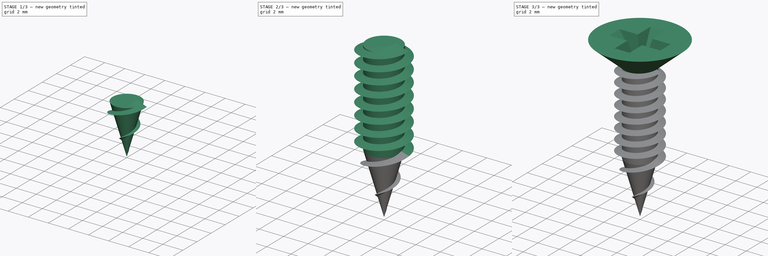
[diagram: build sequence overview — one tinted view per stage of 3, left to right]
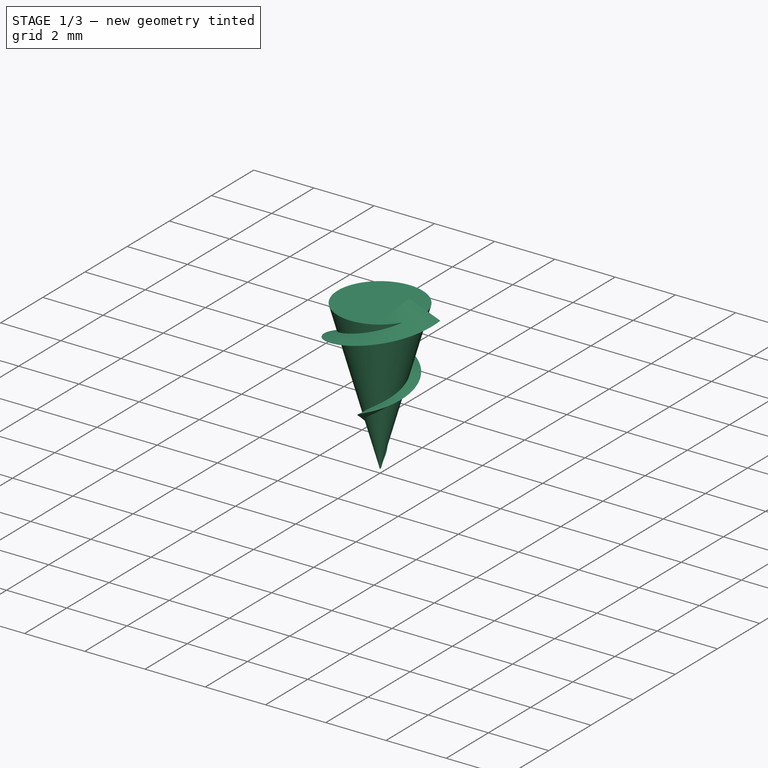
[diagram: stage 1 of 3 — iso view after this stage's code; geometry added in this stage tinted green]
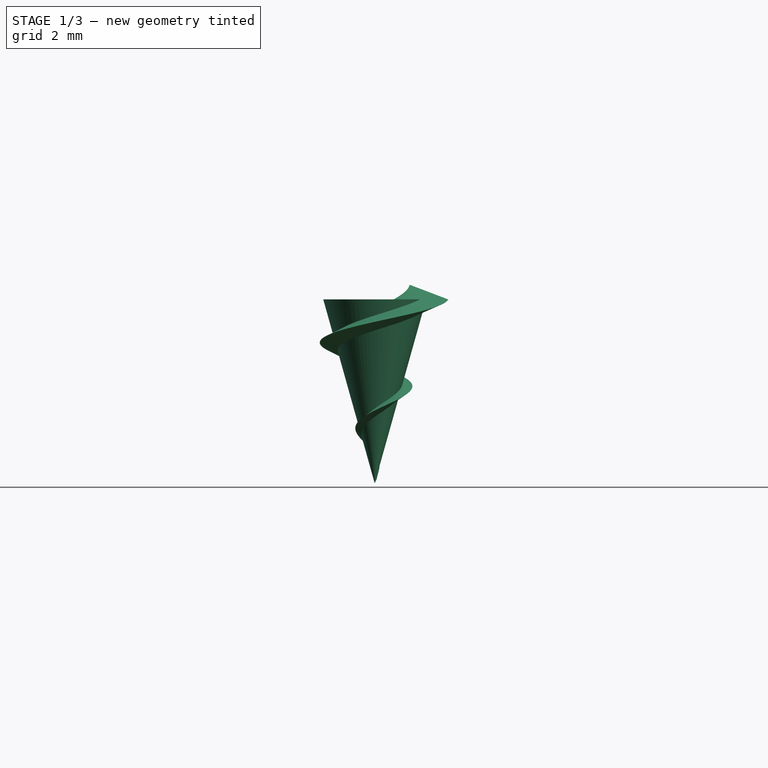
[diagram: stage 1 of 3 — front view after this stage's code; geometry added in this stage tinted green]
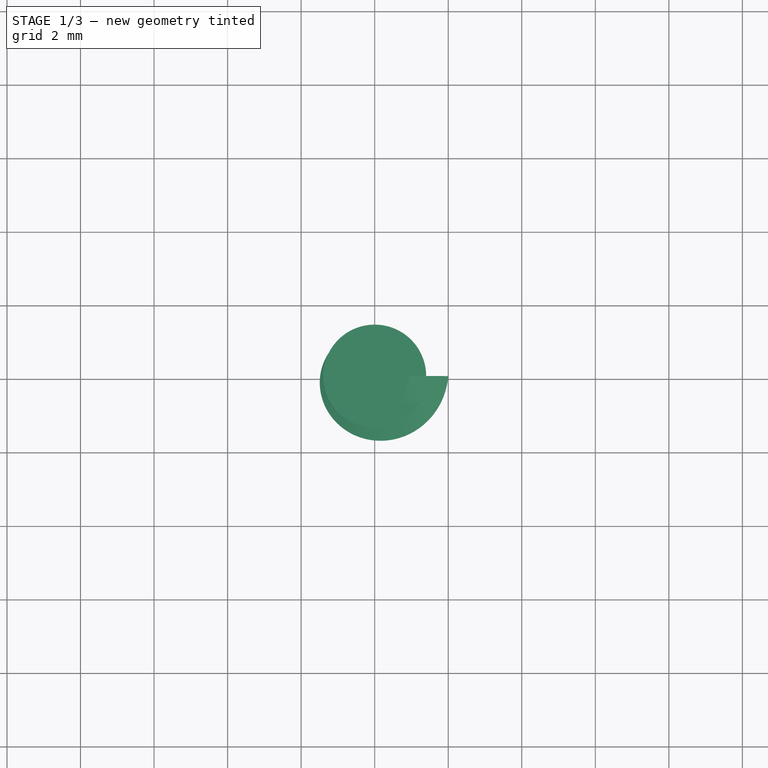
[diagram: stage 1 of 3 — top view after this stage's code; geometry added in this stage tinted green]
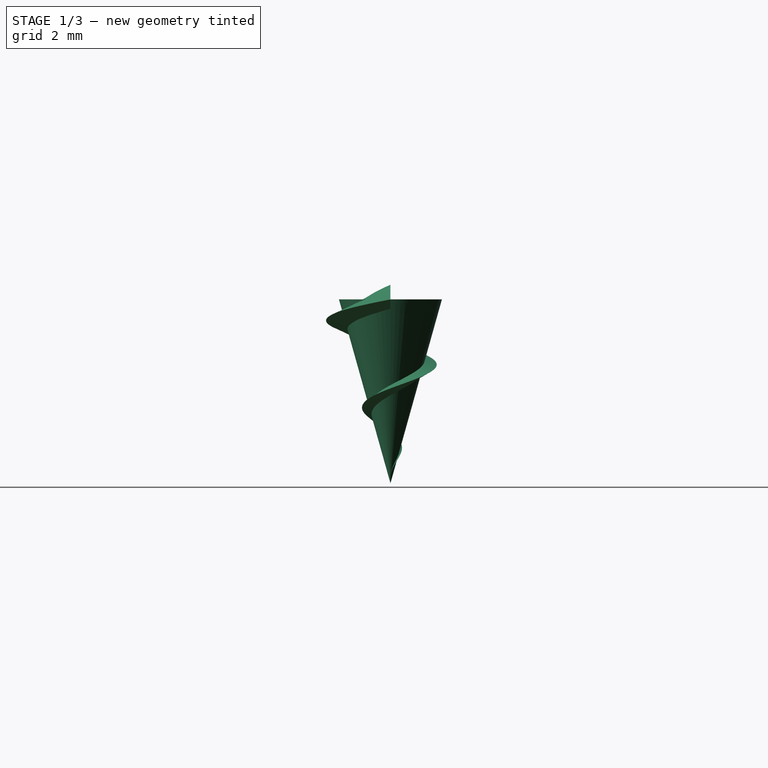
[diagram: stage 1 of 3 — right view after this stage's code; geometry added in this stage tinted green]
FCSTD DOCUMENT  (FreeCAD 0.21R33771 (Git))
Label: Fastener_WoodScrew_StatorMold
License: All rights reserved
LicenseURL: http://en.wikipedia.org/wiki/All_rights_reserved
objects: Sketcher::SketchObject×4, PartDesign::Plane×4, Part::Helix×2, PartDesign::ShapeBinder×2, PartDesign::AdditiveCone×2, PartDesign::AdditiveCylinder×1, Part::Sweep×1, PartDesign::AdditivePipe×1, PartDesign::SubtractiveLoft×1, PartDesign::Body×1, Spreadsheet::Sheet×1, App::Link×1, App::Part×1
note: 24 computed .brp shape members not serialized (recipe doc carries the construction recipe); baked Part::Feature solids carry a one-line shape summary decoded from their .brp
EXTERNAL_REF file=../Master_of_Puppets.FCStd obj=Alternator
EXTERNAL_REF file=../Master_of_Puppets.FCStd obj=Fastener

FEATURE [Part::Helix] Helix  label="TipThreadPath"
  Angle = 10.758
  AttacherType = Attacher::AttachEngine3D
  Height = 5
  LocalCoord = 0
  Pitch = 2.5
  Placement = pos=(0.01,0,0.05) rot=(0,0,1;0rad)
  Radius = 0
  SegmentLength = 0
  Style = 1
  expr: .Placement.Base.x = Spreadsheet.TipThreadPathX
  expr: .Placement.Base.z = Spreadsheet.TipThreadPathZ
  expr: Angle = Spreadsheet.TipThreadPathAngle
  expr: Height = Spreadsheet.TipHeight
  expr: Pitch = Spreadsheet.TipThreadPathPitch
FEATURE [PartDesign::ShapeBinder] ShapeBinder  label="TipThreadPathBinder"
  Placement = pos=(0.01,0,0.05) rot=(0,0,1;0rad)
  Support = -> [Helix]
  TraceSupport = true
FEATURE [Sketcher::SketchObject] Sketch  label="TipThreadProfile"
  FullyConstrained = true
  MapMode = 5
  Placement = pos=(0,0,0) rot=(1,0,0;1.5708rad)
  Support = -> [XZ_Plane]
  expr: Constraints[6] = Spreadsheet.TipThreadProfileHeight
  expr: Constraints[7] = Spreadsheet.TipThreadProfileWidth
  sketch-geometry (3):
    g0: LineSegment StartX=0 StartY=0.1 StartZ=0 EndX=0.05 EndY=0.1 EndZ=0
    g1: LineSegment StartX=0.05 StartY=0.1 StartZ=0 EndX=0 EndY=0 EndZ=0
    g2: LineSegment StartX=0 StartY=0.1 StartZ=0 EndX=0 EndY=0 EndZ=0
  constraints (8):
    c: PointOnObject(g0,g-2)
    c: Horizontal(g0)
    c: Coincident(g0,g1)
    c: Coincident(g1,g-1)
    c: Coincident(g2,g0)
    c: Coincident(g2,g1)
    c: DistanceY(g2,g2) = 0.1
    c: DistanceX(g0,g0) = 0.05
FEATURE [PartDesign::Plane] DatumPlane001  label="ShankPlane"
  Length = 60
  MapMode = 2
  Placement = pos=(0,0,12.75) rot=(0,0,1;0rad)
  ResizeMode = 0
  Width = 60
  expr: .Placement.Base.z = Spreadsheet.ShankPlaneZ
FEATURE [PartDesign::Plane] DatumPlane  label="TipPlane"
  Length = 60
  MapMode = 2
  Placement = pos=(0,0,5) rot=(0,0,1;0rad)
  ResizeMode = 0
  Width = 60
  expr: .Placement.Base.z = Spreadsheet.TipHeight
FEATURE [PartDesign::AdditiveCone] Cone  label="Tip"
  Angle = 360
  AttacherType = Attacher::AttachEngine3D
  Height = 5
  Radius1 = 0
  Radius2 = 1.4
  expr: Height = Spreadsheet.TipHeight
  expr: Radius2 = Spreadsheet.InnerRadius
FEATURE [Sketcher::SketchObject] Sketch001  label="ShankThreadProfile"
  FullyConstrained = true
  MapMode = 5
  Placement = pos=(0,0,0) rot=(1,0,0;1.5708rad)
  Support = -> [XZ_Plane]
  expr: Constraints[5] = Spreadsheet.ShankThreadThickness
  expr: Constraints[6] = Spreadsheet.ShankThreadProfileWidth
  expr: Constraints[7] = Spreadsheet.ShankThreadProfileVerticalDistanceFromCenter
  expr: Constraints[8] = Spreadsheet.Radius
  sketch-geometry (3):
    g0: LineSegment StartX=0.95 StartY=4.6 StartZ=0 EndX=0.95 EndY=5.4 EndZ=0
    g1: LineSegment StartX=0.95 StartY=5.4 StartZ=0 EndX=2 EndY=5 EndZ=0
    g2: LineSegment StartX=2 StartY=5 StartZ=0 EndX=0.95 EndY=4.6 EndZ=0
  constraints (9):
    c: Vertical(g0)
    c: Coincident(g0,g1)
    c: Coincident(g1,g2)
    c: Coincident(g2,g0)
    c: Equal(g2,g1)
    c: DistanceY(g0,g0) = 0.8
    c: DistanceX(g0,g1) = 1.05
    c: DistanceY(g-1,g1) = 5
    c: DistanceX(g-1,g1) = 2
FEATURE [Part::Sweep] Sweep  label="TipThread"
  Frenet = true
  Sections = -> [Sketch,Sketch001]
  Solid = true
  Spine = -> Helix
  Transition = 1
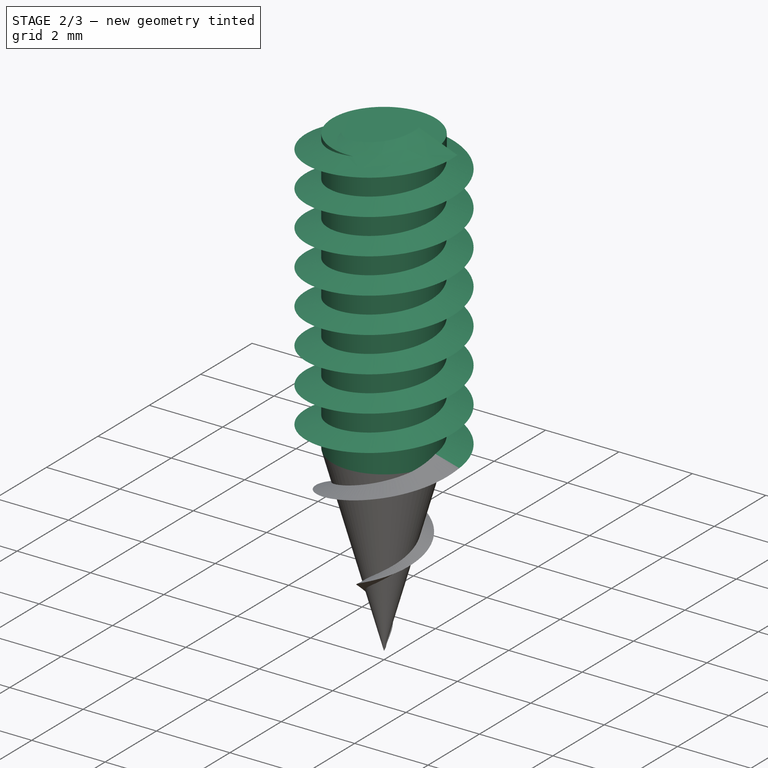
[diagram: stage 2 of 3 — iso view after this stage's code; geometry added in this stage tinted green]
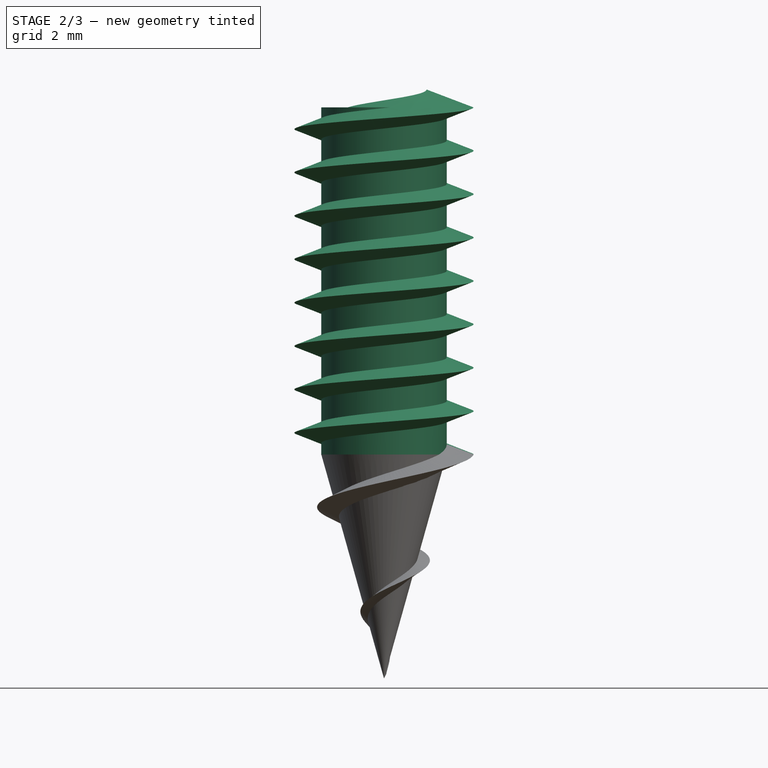
[diagram: stage 2 of 3 — front view after this stage's code; geometry added in this stage tinted green]
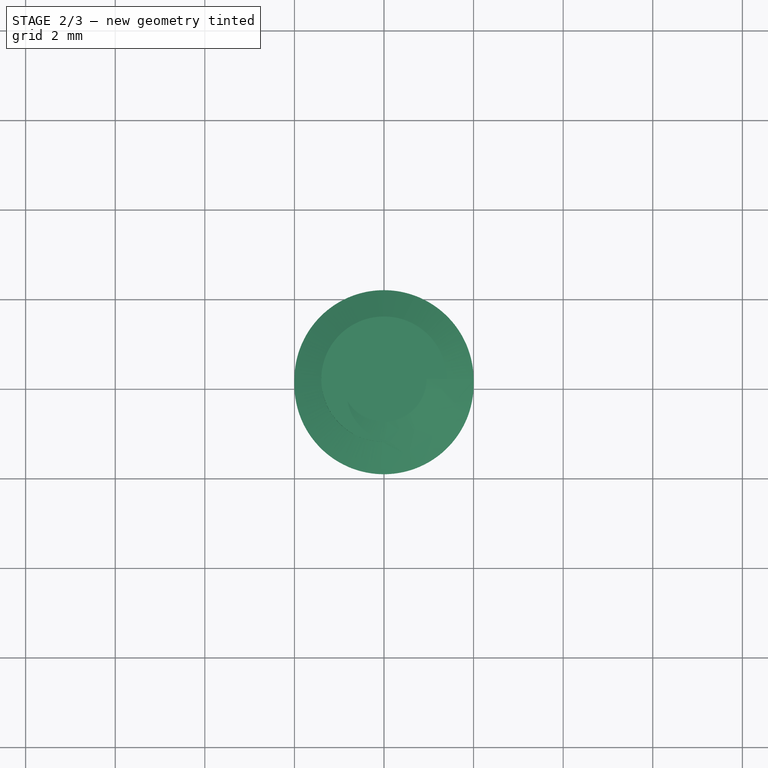
[diagram: stage 2 of 3 — top view after this stage's code; geometry added in this stage tinted green]
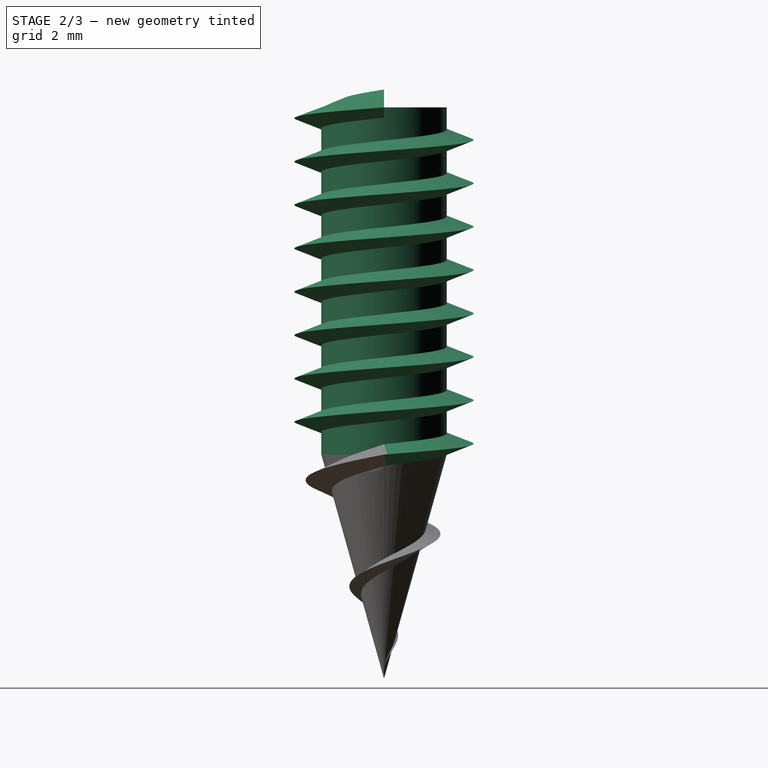
[diagram: stage 2 of 3 — right view after this stage's code; geometry added in this stage tinted green]
FEATURE [PartDesign::AdditiveCylinder] Cylinder  label="Shank"
  Angle = 360
  AttacherType = Attacher::AttachEngine3D
  BaseFeature = -> Cone
  FirstAngle = 0
  Height = 7.75
  MapMode = 5
  Placement = pos=(0,0,5) rot=(0,0,1;0rad)
  Radius = 1.4
  SecondAngle = 0
  Support = -> [DatumPlane]
  expr: Height = Spreadsheet.ShankHeight
  expr: Radius = Spreadsheet.InnerRadius
FEATURE [Part::Helix] Helix001  label="ShankThreadPath"
  Angle = 0
  AttacherType = Attacher::AttachEngine3D
  Height = 7.75
  LocalCoord = 0
  Pitch = 0.96875
  Placement = pos=(0,0,5) rot=(0,0,1;0rad)
  Radius = 2
  SegmentLength = 0
  Style = 1
  expr: .Placement.Base.z = Spreadsheet.TipHeight
  expr: Height = Spreadsheet.ShankHeight
  expr: Pitch = Spreadsheet.ShankThreadPathPitch
  expr: Radius = Spreadsheet.Radius
FEATURE [PartDesign::ShapeBinder] ShapeBinder001  label="ShankThreadPathBinder"
  Placement = pos=(0,0,5) rot=(0,0,1;0rad)
  Support = -> [Helix001]
  TraceSupport = false
FEATURE [PartDesign::AdditivePipe] AdditivePipe  label="ShankThread"
  AuxilleryCurvelinear = true
  AuxillerySpineTangent = false
  BaseFeature = -> Cylinder
  Binormal = (0,0,0)
  Mode = 2
  Placement = pos=(0,0,5) rot=(0,0,1;0rad)
  Profile = -> Sketch001
  Spine = -> ShapeBinder001
  SpineTangent = false
  Transformation = 1
  Transition = 0
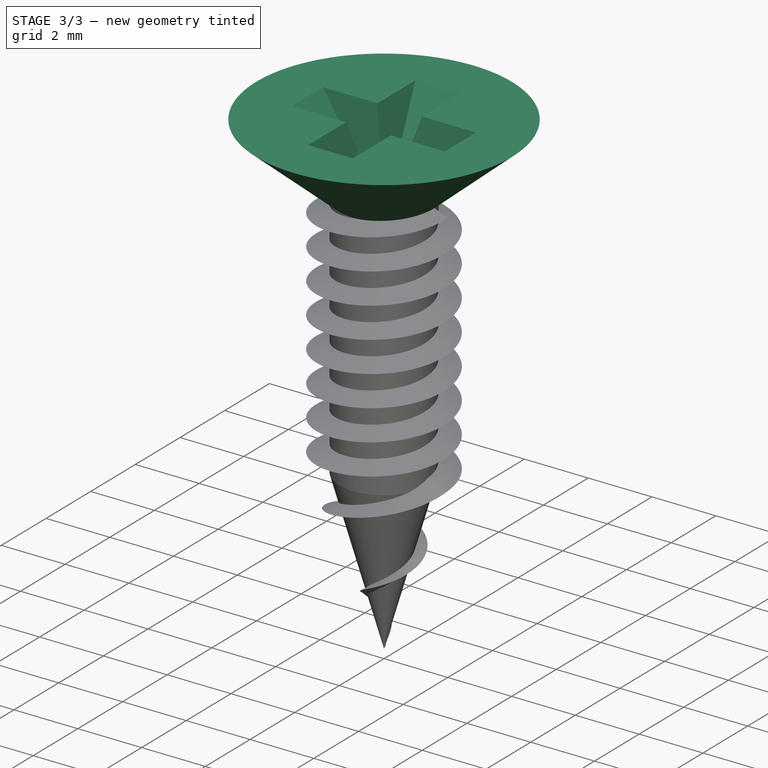
[diagram: stage 3 of 3 — iso view after this stage's code; geometry added in this stage tinted green]
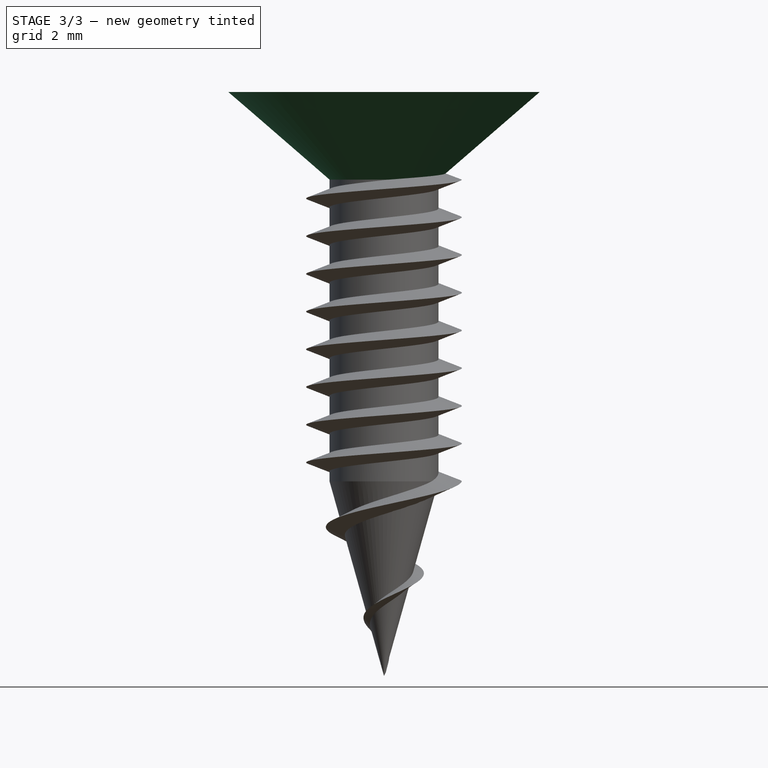
[diagram: stage 3 of 3 — front view after this stage's code; geometry added in this stage tinted green]
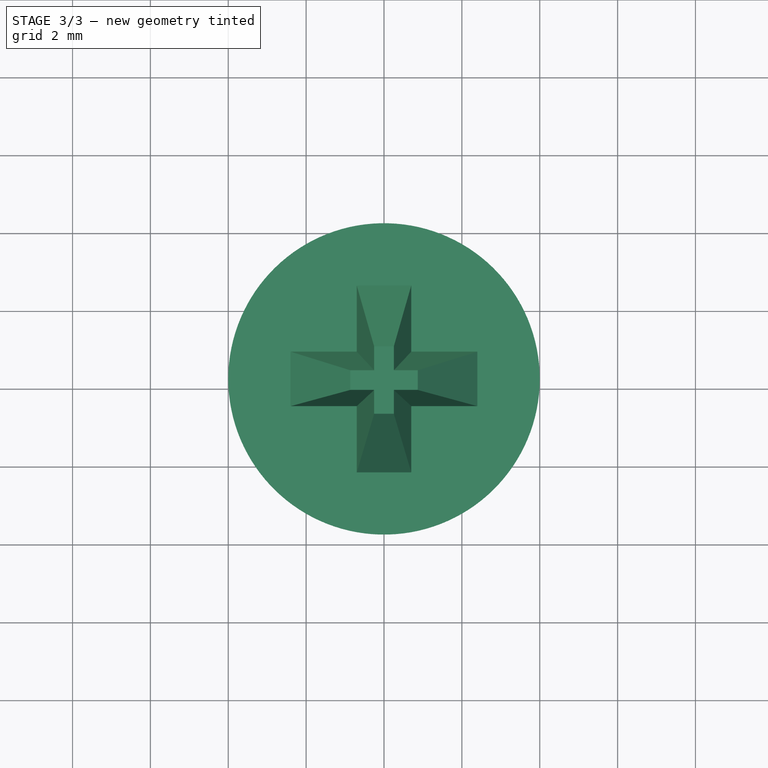
[diagram: stage 3 of 3 — top view after this stage's code; geometry added in this stage tinted green]
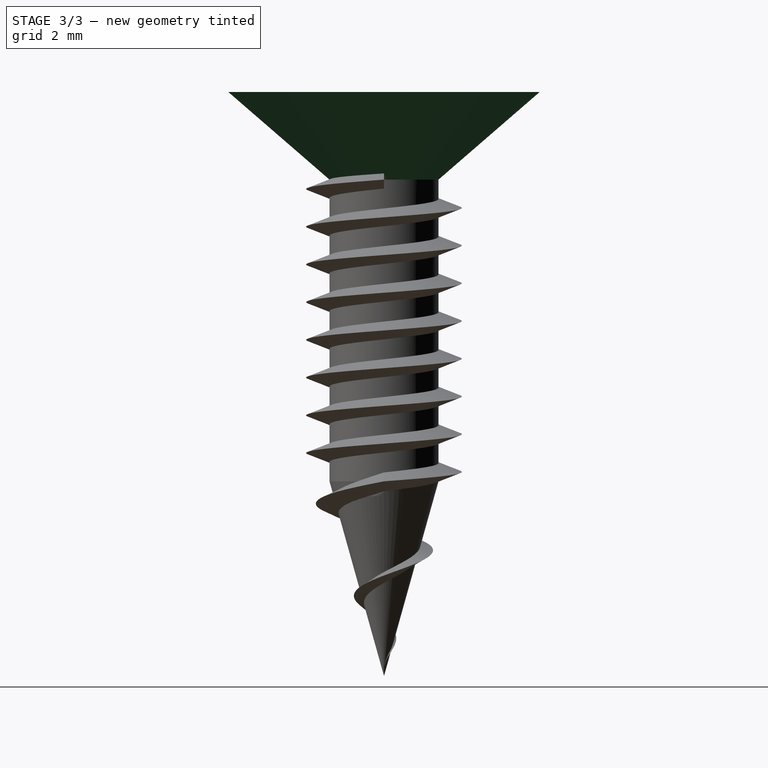
[diagram: stage 3 of 3 — right view after this stage's code; geometry added in this stage tinted green]
FEATURE [PartDesign::AdditiveCone] Cone001  label="Head"
  Angle = 360
  AttacherType = Attacher::AttachEngine3D
  BaseFeature = -> AdditivePipe
  Height = 2.25
  MapMode = 5
  Placement = pos=(0,0,12.75) rot=(0,0,1;0rad)
  Radius1 = 1.4
  Radius2 = 4
  Support = -> [DatumPlane001]
  expr: Height = Spreadsheet.HeadHeight
  expr: Radius1 = Spreadsheet.InnerRadius
  expr: Radius2 = Spreadsheet.HeadRadius
FEATURE [PartDesign::Plane] DatumPlane002  label="HeadPlane"
  Length = 60
  MapMode = 2
  Placement = pos=(0,0,15) rot=(0,0,1;0rad)
  ResizeMode = 0
  Width = 60
  expr: .Placement.Base.z = Spreadsheet.HeadPlaneZ
FEATURE [Sketcher::SketchObject] Sketch002  label="CrossSketch"
  FullyConstrained = true
  MapMode = 5
  Placement = pos=(0,0,15) rot=(0,0,1;0rad)
  Support = -> [DatumPlane002]
  expr: Constraints[32] = Spreadsheet.CrossWidth
  expr: Constraints[33] = Spreadsheet.CrossHeight
  sketch-geometry (12):
    g0: LineSegment StartX=-0.7 StartY=2.4 StartZ=0 EndX=0.7 EndY=2.4 EndZ=0
    g1: LineSegment StartX=0.7 StartY=2.4 StartZ=0 EndX=0.7 EndY=0.700003 EndZ=0
    g2: LineSegment StartX=0.7 StartY=0.700003 StartZ=0 EndX=2.4 EndY=0.7 EndZ=0
    g3: LineSegment StartX=2.4 StartY=0.7 StartZ=0 EndX=2.4 EndY=-0.7 EndZ=0
    g4: LineSegment StartX=2.4 StartY=-0.7 StartZ=0 EndX=0.7 EndY=-0.7 EndZ=0
    g5: LineSegment StartX=0.7 StartY=-0.7 StartZ=0 EndX=0.7 EndY=-2.4 EndZ=0
    g6: LineSegment StartX=0.7 StartY=-2.4 StartZ=0 EndX=-0.7 EndY=-2.4 EndZ=0
    g7: LineSegment StartX=-0.7 StartY=-2.4 StartZ=0 EndX=-0.7 EndY=-0.7 EndZ=0
    g8: LineSegment StartX=-0.7 StartY=-0.7 StartZ=0 EndX=-2.4 EndY=-0.7 EndZ=0
    g9: LineSegment StartX=-2.4 StartY=-0.7 StartZ=0 EndX=-2.4 EndY=0.7 EndZ=0
    g10: LineSegment StartX=-2.4 StartY=0.7 StartZ=0 EndX=-0.7 EndY=0.7 EndZ=0
    g11: LineSegment StartX=-0.7 StartY=0.7 StartZ=0 EndX=-0.7 EndY=2.4 EndZ=0
  constraints (34):
    c: Horizontal(g0)
    c: Coincident(g0,g1)
    c: Vertical(g1)
    c: Coincident(g1,g2)
    c: Coincident(g2,g3)
    c: Vertical(g3)
    c: Coincident(g3,g4)
    c: Coincident(g4,g5)
    c: Vertical(g5)
    c: Coincident(g5,g6)
    c: Horizontal(g6)
    c: Coincident(g6,g7)
    c: Vertical(g7)
    c: Coincident(g7,g8)
    c: Horizontal(g8)
    c: Coincident(g8,g9)
    c: Vertical(g9)
    c: Coincident(g9,g10)
    c: Horizontal(g10)
    c: Coincident(g10,g11)
    c: Coincident(g11,g0)
    c: Vertical(g11)
    c: Horizontal(g4)
    c: Equal(g8,g7)
    c: Equal(g7,g10)
    c: Equal(g10,g11)
    c: Equal(g11,g2)
    c: Equal(g2,g4)
    c: Equal(g0,g9)
    c: Equal(g9,g3)
    c: Symmetric(g0,g5,g-1)
    c: Symmetric(g3,g8,g-2)
    c: DistanceX(g0,g0) = 1.4
    c: DistanceY(g5,g0) = 4.8
FEATURE [PartDesign::Plane] DatumPlane003  label="CrossRecessPlane"
  Length = 60
  MapMode = 2
  Placement = pos=(0,0,13.25) rot=(0,0,1;0rad)
  ResizeMode = 0
  Width = 60
  expr: .Placement.Base.z = Spreadsheet.CrossRecessPlaneZ
FEATURE [Sketcher::SketchObject] Sketch004  label="CrossRecessSketch"
  FullyConstrained = true
  MapMode = 5
  Placement = pos=(0,0,13.25) rot=(0,0,1;0rad)
  Support = -> [DatumPlane003]
  expr: Constraints[32] = Spreadsheet.CrossRecessHeight
  expr: Constraints[33] = Spreadsheet.CrossRecessWidth
  sketch-geometry (12):
    g0: LineSegment StartX=-0.252577 StartY=0.865979 StartZ=0 EndX=0.252577 EndY=0.865979 EndZ=0
    g1: LineSegment StartX=0.252577 StartY=0.865979 StartZ=0 EndX=0.252577 EndY=0.252577 EndZ=0
    g2: LineSegment StartX=0.252577 StartY=0.252577 StartZ=0 EndX=0.865979 EndY=0.252577 EndZ=0
    g3: LineSegment StartX=0.865979 StartY=0.252577 StartZ=0 EndX=0.865979 EndY=-0.252577 EndZ=0
    g4: LineSegment StartX=0.865979 StartY=-0.252577 StartZ=0 EndX=0.252577 EndY=-0.252577 EndZ=0
    g5: LineSegment StartX=0.252577 StartY=-0.252577 StartZ=0 EndX=0.252577 EndY=-0.865979 EndZ=0
    g6: LineSegment StartX=0.252577 StartY=-0.865979 StartZ=0 EndX=-0.252577 EndY=-0.865979 EndZ=0
    g7: LineSegment StartX=-0.252577 StartY=-0.865979 StartZ=0 EndX=-0.252577 EndY=-0.252577 EndZ=0
    g8: LineSegment StartX=-0.252577 StartY=-0.252577 StartZ=0 EndX=-0.865979 EndY=-0.252577 EndZ=0
    g9: LineSegment StartX=-0.865979 StartY=-0.252577 StartZ=0 EndX=-0.865979 EndY=0.252577 EndZ=0
    g10: LineSegment StartX=-0.865979 StartY=0.252577 StartZ=0 EndX=-0.252577 EndY=0.252577 EndZ=0
    g11: LineSegment StartX=-0.252577 StartY=0.252577 StartZ=0 EndX=-0.252577 EndY=0.865979 EndZ=0
  constraints (34):
    c: Horizontal(g0)
    c: Coincident(g0,g1)
    c: Vertical(g1)
    c: Coincident(g1,g2)
    c: Coincident(g2,g3)
    c: Vertical(g3)
    c: Coincident(g3,g4)
    c: Coincident(g4,g5)
    c: Vertical(g5)
    c: Coincident(g5,g6)
    c: Horizontal(g6)
    c: Coincident(g6,g7)
    c: Vertical(g7)
    c: Coincident(g7,g8)
    c: Coincident(g8,g9)
    c: Vertical(g9)
    c: Coincident(g9,g10)
    c: Horizontal(g10)
    c: Coincident(g10,g11)
    c: Coincident(g11,g0)
    c: Vertical(g11)
    c: Horizontal(g8)
    c: Horizontal(g4)
    c: Horizontal(g2)
    c: Equal(g7,g8)
    c: Equal(g8,g10)
    c: Equal(g10,g11)
    c: Equal(g1,g2)
    c: Equal(g4,g5)
    c: Equal(g9,g6)
    c: Symmetric(g0,g5,g-1)
    c: Symmetric(g9,g2,g-2)
    c: DistanceY(g5,g0) = 1.73196
    c: DistanceX(g0,g0) = 0.505155
FEATURE [PartDesign::SubtractiveLoft] SubtractiveLoft  label="CrossRecess"
  BaseFeature = -> Cone001
  Closed = false
  Placement = pos=(0,0,12.75) rot=(0,0,1;0rad)
  Profile = -> Sketch002
  Ruled = false
  Sections = -> [Sketch004]
FEATURE [PartDesign::Body] Body
  Group = -> [Cone,DatumPlane,Cylinder,DatumPlane001,Sketch001,ShapeBinder,ShapeBinder001,AdditivePipe,Cone001,DatumPlane002,Sketch002,DatumPlane003,Sketch004,SubtractiveLoft]
  Origin = -> Origin
  Tip = -> SubtractiveLoft
  Variant = 0
  expr: .Variant.Enum = Spreadsheet.cells[<<A3:|>>]
FEATURE [Spreadsheet::Sheet] Spreadsheet
  cells = A1='Variant; B1='Diameter (including threads); C1='Length; A2==hiddenref(Body.Variant.String); B2(Diameter)==.B3; C2(Length)==.C3; A3='StatorMold; B3==Master_of_Puppets#Alternator.StatorMoldWoodScrewDiameter; C3==Master_of_Puppets#Alternator.StatorMoldScrewLength; A4='RotorMold; B4==Master_of_Puppets#Fastener.WoodScrewDiameter; C4==Master_of_Puppets#Alternator.RotorMoldScrewLength; A6='Parameters; A7='ShankThreadTurns; B7(ShankThreadTurns)=8; A8='TipThreadTurns; B8(TipThreadTurns)=2; A9='ShankThreadThickness; B9(ShankThreadThickness)=0.8; A10='Calculated; A11='Radius; B11(Radius)==Diameter / 2; A12='HeadHeight; B12(HeadHeight)==1.9 * Radius - 1.55; A13='TipHeight; B13(TipHeight)=5; A14='ShankHeight; B14(ShankHeight)==Length - HeadHeight - TipHeight; A15='ShankPlaneZ; B15(ShankPlaneZ)==TipHeight + ShankHeight; A16='HeadRadius; B16(HeadRadius)==1.7 * Radius + 0.6; A17='HeadPlaneZ; B17(HeadPlaneZ)==ShankPlaneZ + HeadHeight; A18='InnerRadius; B18(InnerRadius)==0.7 * Radius; A19='TipThreadProfile; A20='Height; B20(TipThreadProfileHeight)=0.1; A21='Width; B21(TipThreadProfileWidth)=0.05; A22='ShankThreadProfile; A23='Thickness; B23(ShankThreadProfileThickness)==Radius - InnerRadius; A24='HorizontalDistanceFromCenter; B24(ShankThreadProfileHorizontalDistanceFromCenter)==Radius - 0.45; A25='VerticalDistanceFromCenter; B25(ShankThreadProfileVerticalDistanceFromCenter)==TipHeight; A26='Width; B26(ShankThreadProfileWidth)==Radius + ShankThreadProfileThickness - ShankThreadProfileHorizontalDistanceFromCenter; A27='TipThreadPath; A28='Angle; B28(TipThreadPathAngle)==atan((Radius - ShankThreadProfileWidth) / TipHeight); A29='X; B29(TipThreadPathX)==TipThreadProfileWidth / 5; A30='Z; B30(TipThreadPathZ)==TipThreadProfileHeight / 2; A31='Pitch; B31(TipThreadPathPitch)==TipHeight / TipThreadTurns; A32='ShankThreadPath; A33='Pitch; B33(ShankThreadPathPitch)==ShankHeight / ShankThreadTurns; A34='Cross; A35='Width; B35(CrossWidth)==InnerRadius; A36='Height; B36(CrossHeight)==HeadRadius * 2 * 0.6; A37='RecessPlaneZ; B37(CrossRecessPlaneZ)==ShankPlaneZ + 0.5; A38='RecessWidth; B38(CrossRecessWidth)==CrossWidth * 0.360824742268041; A39='RecessHeight; B39(CrossRecessHeight)==CrossHeight * 0.360824742268041
  expr: .cells.Bind.B2.C2 = tuple(.cells; <<B>> + str(hiddenref(Body.Variant) + 3); <<C>> + str(hiddenref(Body.Variant) + 3))
FEATURE [App::Link] Link  label="TipThreadLink"
  LinkedObject = -> Sweep
FEATURE [App::Part] Part  label="Fastener_WoodScrew"
  Group = -> [Link,Body]
  Origin = -> Origin001

RESOLVED EXTERNAL PARTS (link-assembly join: the EXTERNAL_REF files above that resolve inside this repo's crawl, each included once):
---- part ../Master_of_Puppets.FCStd = doc fcstd_6404554055c4 (61625 chars; too large to inline — full recipe in that document) ----
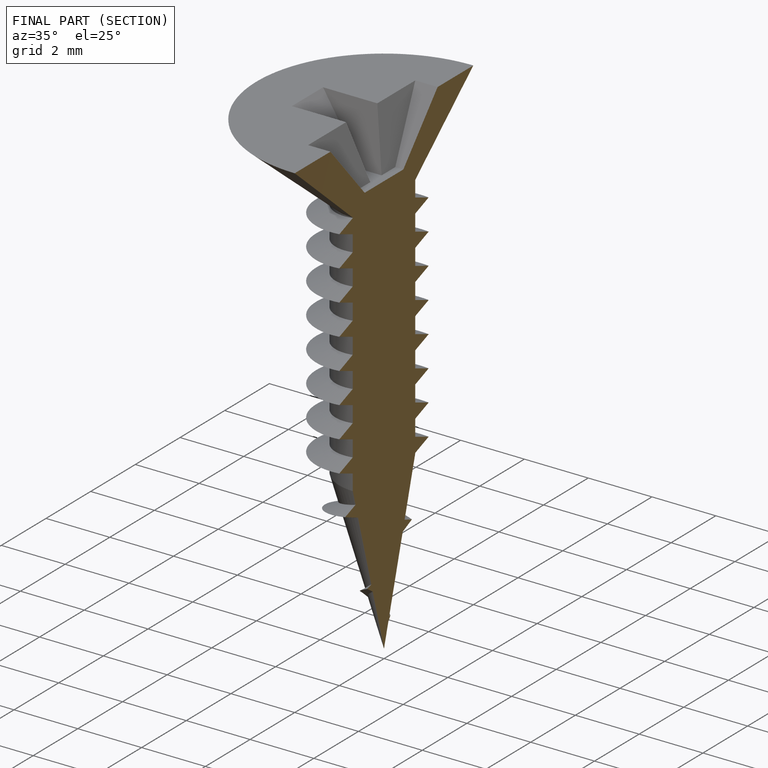
[diagram: finished part — half-section view (interior)]
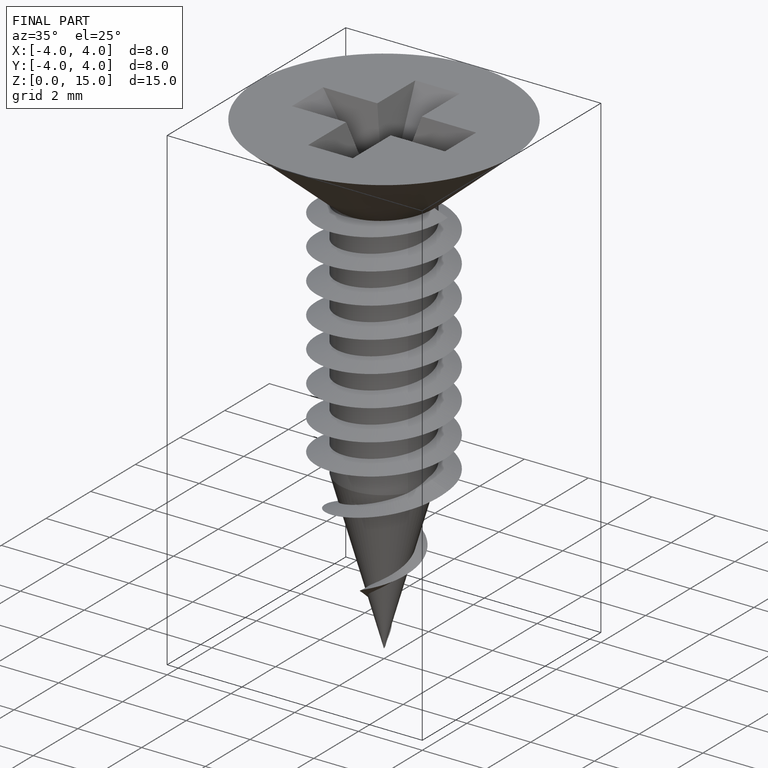
[diagram: finished part — iso view with bounding-box wireframe]
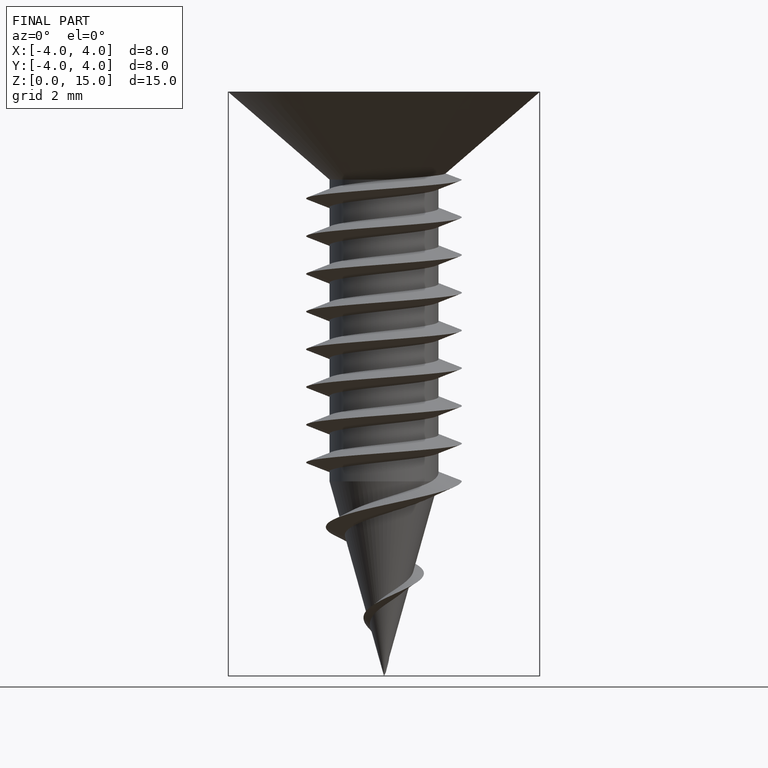
[diagram: finished part — front view with bounding-box wireframe]
